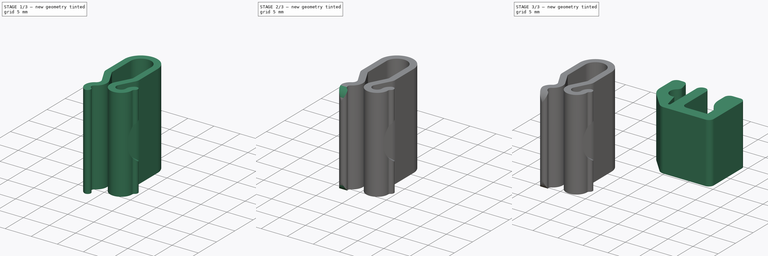
[diagram: build sequence overview — one tinted view per stage of 3, left to right]
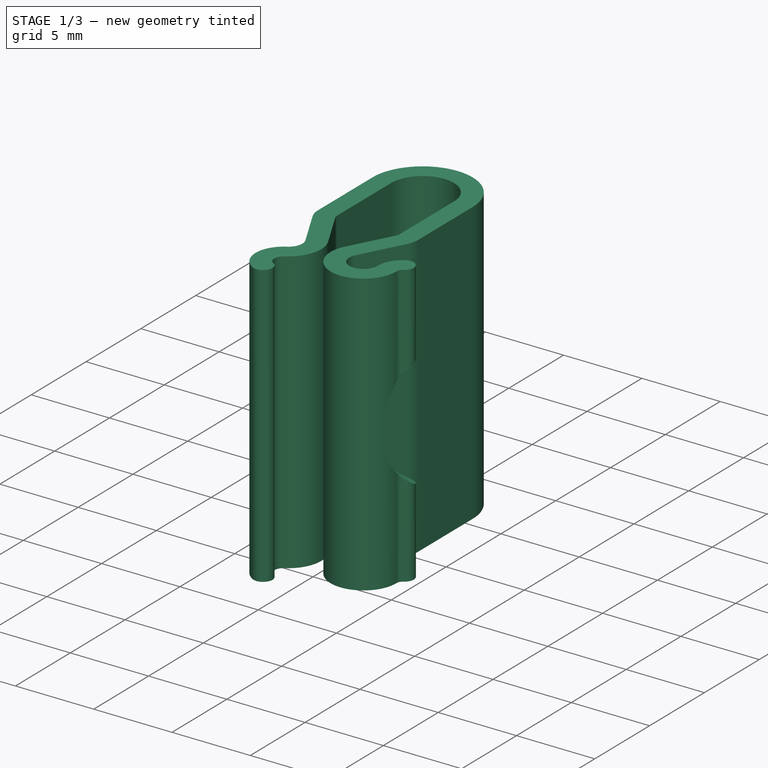
[diagram: stage 1 of 3 — iso view after this stage's code; geometry added in this stage tinted green]
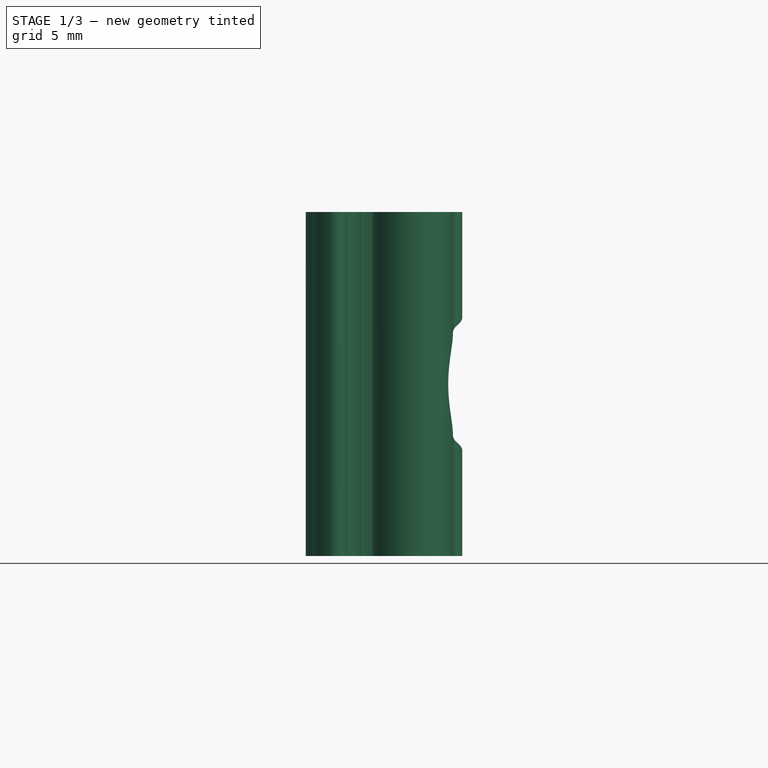
[diagram: stage 1 of 3 — front view after this stage's code; geometry added in this stage tinted green]
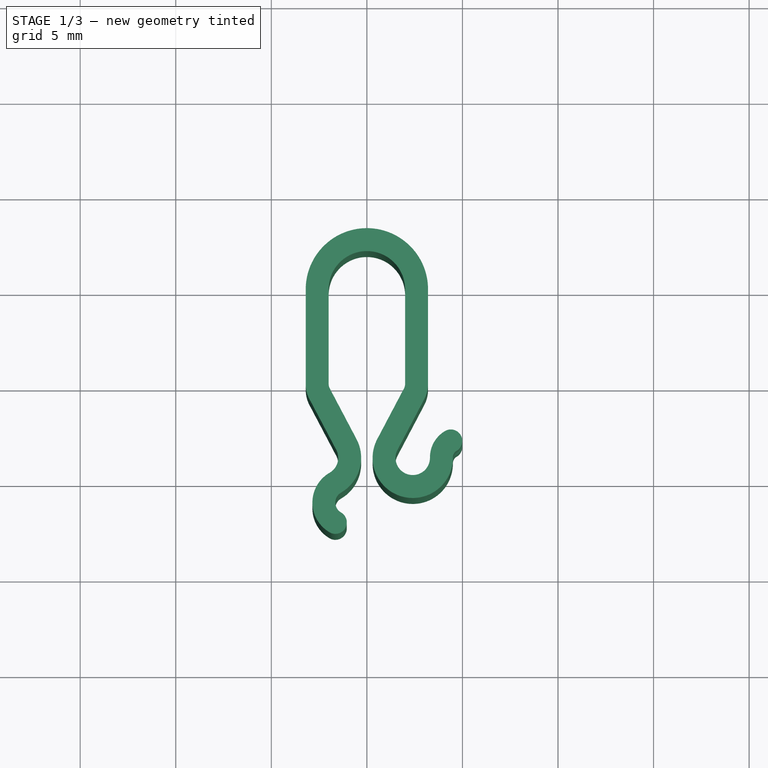
[diagram: stage 1 of 3 — top view after this stage's code; geometry added in this stage tinted green]
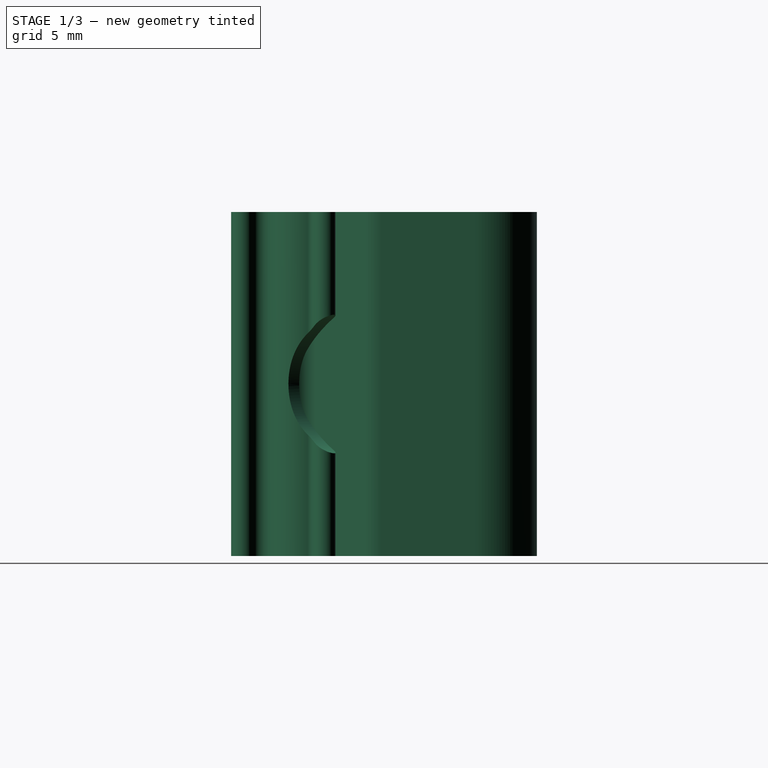
[diagram: stage 1 of 3 — right view after this stage's code; geometry added in this stage tinted green]
FCSTD DOCUMENT  (FreeCAD 1.0R39109 (Git))
Label: FilamentClip
License: All rights reserved
LicenseURL: http://en.wikipedia.org/wiki/All_rights_reserved
objects: Sketcher::SketchObject×4, PartDesign::Pad×2, PartDesign::Body×2, PartDesign::Pocket×2, PartDesign::Fillet×1
note: 25 computed .brp shape members not serialized (recipe doc carries the construction recipe); baked Part::Feature solids carry a one-line shape summary decoded from their .brp

FEATURE [PartDesign::Body] Body002  label="3mm"
  AllowCompound = false
  Group = -> [Sketch002,Pad002,Fillet001]
  Origin = -> Origin005
  Tip = -> Fillet001
FEATURE [Sketcher::SketchObject] Sketch009
  ArcFitTolerance = 1e-06
  AttachmentSupport = -> [XY_Plane009]
  FullyConstrained = true
  MakeInternals = false
  MapMode = 5
  sketch-geometry (37):
    g0: LineSegment StartX=-1.60396 StartY=-8.40013 StartZ=0 EndX=-3.00363 EndY=-5.74666 EndZ=0
    g1: LineSegment StartX=3.00363 StartY=-5.74666 StartZ=0 EndX=1.60396 EndY=-8.40013 EndZ=0
    g2: ArcOfCircle CenterX=2.4 CenterY=-8.82003 CenterZ=0 NormalX=0 NormalY=0 NormalZ=1 AngleXU=0 Radius=0.9 StartAngle=2.6562 EndAngle=6.29272
    g3: ArcOfCircle CenterX=4.89989 CenterY=-8.79618 CenterZ=0 NormalX=0 NormalY=0 NormalZ=1 AngleXU=0 Radius=1.6 StartAngle=2.10393 EndAngle=3.15113
    g4: ArcOfCircle CenterX=2.4 CenterY=-8.82003 CenterZ=0 NormalX=0 NormalY=0 NormalZ=1 AngleXU=0 Radius=2.1 StartAngle=2.6562 EndAngle=6.29272
    g5: LineSegment StartX=0.54257 StartY=-7.84026 StartZ=0 EndX=1.94225 EndY=-5.18679 EndZ=0
    g6: LineSegment StartX=-1.94225 StartY=-5.18679 StartZ=0 EndX=-0.54257 EndY=-7.84026 EndZ=0
    g7: LineSegment [constr] StartX=0.54257 StartY=-7.84026 StartZ=0 EndX=-0.54257 EndY=-7.84026 EndZ=0
    g8: ArcOfCircle CenterX=4.89989 CenterY=-8.79618 CenterZ=0 NormalX=0 NormalY=0 NormalZ=1 AngleXU=0 Radius=0.4 StartAngle=2.10393 EndAngle=3.15113
    g9: ArcOfCircle CenterX=-2.4 CenterY=-8.82003 CenterZ=0 NormalX=0 NormalY=0 NormalZ=1 AngleXU=0 Radius=2.1 StartAngle=5.23599 EndAngle=6.76858
    g10: ArcOfCircle CenterX=-2.4 CenterY=-8.82003 CenterZ=0 NormalX=0 NormalY=0 NormalZ=1 AngleXU=0 Radius=0.9 StartAngle=5.23599 EndAngle=6.76858
    g11: LineSegment [constr] StartX=2.3e-15 StartY=-7.84026 StartZ=0 EndX=-9e-16 EndY=3.2 EndZ=0
    g12: LineSegment [constr] StartX=-0.3 StartY=-7.84026 StartZ=0 EndX=-0.3 EndY=-8.82003 EndZ=0
    g13: LineSegment [constr] StartX=0.3 StartY=-7.84026 StartZ=0 EndX=0.3 EndY=-8.82003 EndZ=0
    g14: LineSegment [constr] StartX=3.00363 StartY=-5.74666 StartZ=0 EndX=1.94225 EndY=-5.18679 EndZ=0
    g15: LineSegment [constr] StartX=-3.00363 StartY=-5.74666 StartZ=0 EndX=-1.94225 EndY=-5.18679 EndZ=0
    g16: ArcOfCircle CenterX=-1.5 CenterY=-4.95351 CenterZ=0 NormalX=0 NormalY=0 NormalZ=1 AngleXU=0 Radius=0.5 StartAngle=3.14159 EndAngle=3.62699
    g17: LineSegment StartX=-2 StartY=-4.95351 StartZ=0 EndX=-2 EndY=4.23185e-07 EndZ=0
    g18: ArcOfCircle CenterX=-1.5 CenterY=-4.95351 CenterZ=0 NormalX=0 NormalY=0 NormalZ=1 AngleXU=0 Radius=1.7 StartAngle=3.14159 EndAngle=3.62699
    g19: LineSegment StartX=-3.2 StartY=-2.64623e-06 StartZ=0 EndX=-3.2 EndY=-4.95351 EndZ=0
    g20: ArcOfCircle CenterX=1.5 CenterY=-4.95351 CenterZ=0 NormalX=0 NormalY=0 NormalZ=1 AngleXU=0 Radius=0.5 StartAngle=5.79779 EndAngle=6.28319
    g21: ArcOfCircle CenterX=1.5 CenterY=-4.95351 CenterZ=0 NormalX=0 NormalY=0 NormalZ=1 AngleXU=0 Radius=1.7 StartAngle=5.79779 EndAngle=6.28319
    g22: LineSegment StartX=3.2 StartY=-4.95351 StartZ=0 EndX=3.2 EndY=0 EndZ=0
    g23: LineSegment StartX=2 StartY=-4.95351 StartZ=0 EndX=2 EndY=0 EndZ=0
    g24: ArcOfCircle CenterX=0 CenterY=0 CenterZ=0 NormalX=0 NormalY=0 NormalZ=1 AngleXU=0 Radius=2 StartAngle=0 EndAngle=3.14159
    g25: ArcOfCircle CenterX=0 CenterY=0 CenterZ=0 NormalX=0 NormalY=0 NormalZ=1 AngleXU=0 Radius=3.2 StartAngle=0 EndAngle=3.14159
    g26: LineSegment [constr] StartX=3.4847 StartY=-8.04969 StartZ=0 EndX=2.61772 EndY=-9.6933 EndZ=0
    g27: LineSegment [constr] StartX=3.4847 StartY=-8.04969 StartZ=0 EndX=2.15797 EndY=-7.34985 EndZ=0
    g28: ArcOfCircle CenterX=4.39165 CenterY=-7.93497 CenterZ=0 NormalX=0 NormalY=0 NormalZ=1 AngleXU=0 Radius=0.6 StartAngle=5.24553 EndAngle=8.38712
    g29: LineSegment [constr] StartX=3.29996 StartY=-8.81145 StartZ=0 EndX=4.4999 EndY=-8.8 EndZ=0
    g30: LineSegment [constr] StartX=4.69659 StartY=-8.4517 StartZ=0 EndX=4.08671 EndY=-7.41824 EndZ=0
    g31: LineSegment [constr] StartX=-1.35 StartY=-10.6387 StartZ=0 EndX=-2.4 EndY=-8.82003 EndZ=0
    g32: LineSegment [constr] StartX=-2.4 StartY=-8.82003 StartZ=0 EndX=-0.3 EndY=-8.82003 EndZ=0
    g33: ArcOfCircle CenterX=-1.05 CenterY=-11.1583 CenterZ=0 NormalX=0 NormalY=0 NormalZ=1 AngleXU=0 Radius=0.6 StartAngle=2.0944 EndAngle=4.18879
    g34: ArcOfCircle CenterX=-1.05 CenterY=-11.1583 CenterZ=0 NormalX=0 NormalY=0 NormalZ=1 AngleXU=0 Radius=1.8 StartAngle=2.0944 EndAngle=4.18879
    g35: LineSegment [constr] StartX=-1.95 StartY=-12.7171 StartZ=0 EndX=-1.35 EndY=-11.6779 EndZ=0
    g36: ArcOfCircle CenterX=-1.65 CenterY=-12.1975 CenterZ=0 NormalX=0 NormalY=0 NormalZ=1 AngleXU=0 Radius=0.6 StartAngle=4.18879 EndAngle=7.33038
  constraints (90):
    c: Coincident(g4,g2)
    c: Parallel(g5,g1)
    c: Parallel(g0,g6)
    c: Horizontal(g7)
    c: Equal(g6,g5)
    c: Coincident(g8,g3)
    c: Radius(g8) = 0.4
    c: Tangent(g2,g3) = 1.5708
    c: Coincident(g10,g9)
    c: Equal(g2,g10)
    c: Symmetric(g7,g7,g11)
    c: Vertical(g13)
    c: Tangent(g13,g4) = -1.5708
    c: Vertical(g12)
    c: Diameter(g2) = 1.8
    c: Distance(g1) = 3
    c: Symmetric(g5,g6,g11)
    c: Coincident(g14,g1)
    c: PointOnObject(g14,g5)
    c: Perpendicular(g5,g14)
    c: Distance(g14) = 1.2
    c: Coincident(g15,g0)
    c: PointOnObject(g15,g6)
    c: Perpendicular(g6,g15)
    c: Equal(g15,g14)
    c: Tangent(g6,g16) = -1.5708
    c: Vertical(g17)
    c: Tangent(g16,g17) = 1.5708
    c: Coincident(g18,g16)
    c: Tangent(g18,g0) = 1.5708
    c: Vertical(g19)
    c: Tangent(g18,g19) = -1.5708
    c: Tangent(g5,g20) = -1.5708
    c: Coincident(g21,g20)
    c: Tangent(g1,g21) = 1.5708
    c: Vertical(g22)
    c: Vertical(g23)
    c: Tangent(g23,g20) = -1.5708
    c: Tangent(g21,g22) = -1.5708
    c: Equal(g16,g20)
    c: Radius(g16) = 0.5
    c: Tangent(g23,g24) = -1.5708
    c: Coincident(g17,g24)
    c: Coincident(g25,g19)
    c: Tangent(g22,g25) = -1.5708
    c: PointOnObject(g24,g11)
    c: PointOnObject(g11,g25)
    c: Coincident(g24,g25)
    c: Tangent(g6,g9) = 1.5708
    c: Tangent(g0,g10) = -1.5708
    c: Tangent(g4,g5) = 1.5708
    c: Tangent(g1,g2) = -1.5708
    c: Tangent(g4,g8) = 1.5708
    c: PointOnObject(g26,g2)
    c: Parallel(g26,g1)
    c: Tangent(g26,g3) = -1.5708
    c: Coincident(g27,g26)
    c: PointOnObject(g27,g1)
    c: Perpendicular(g1,g27)
    c: Distance(g27) = 1.5
    c: Coincident(g7,g6)
    c: Coincident(g7,g4)
    c: PointOnObject(g12,g7)
    c: PointOnObject(g13,g7)
    c: DistanceX(g12,g13) = 0.6
    c: Coincident(g-1,g24)  '__ANCHOR__'
    c: DistanceY(g4,g11) = 12
    c: Tangent(g28,g3) = -1.5708
    c: Tangent(g28,g8) = 1.5708
    c: Coincident(g30,g8)
    c: Coincident(g30,g3)
    c: Angle(g30,g29) = 1.0472
    c: Coincident(g29,g4)
    c: Coincident(g29,g2)
    c: Radius(g24) = 2
    c: Tangent(g12,g9) = 1.5708
    c: Coincident(g31,g9)
    c: Coincident(g31,g9)
    c: Coincident(g32,g9)
    c: Coincident(g32,g12)
    c: Angle(g31,g32) = 1.0472
    c: Coincident(g34,g33)
    c: Tangent(g9,g33) = 1.5708
    c: Tangent(g10,g34) = 1.5708
    c: Coincident(g35,g34)
    c: Coincident(g35,g33)
    c: Tangent(g34,g36) = -1.5708
    c: Tangent(g33,g36) = 1.5708
    c: Angle(g31,g35) = 2.0944
    c: Radius(g33) = 0.6
FEATURE [PartDesign::Pad] Pad005
  Direction = (0,0,1)
  Length = 18
  Length2 = 10
  Profile = -> Sketch009
  ReferenceAxis = -> Sketch009 [N_Axis]
  Suppressed = false
  Type = 0
FEATURE [Sketcher::SketchObject] Sketch011
  ArcFitTolerance = 1e-06
  AttachmentOffset = pos=(0,0,0.1) rot=(0,0,1;0rad)
  AttachmentSupport = -> [Pad005]
  ExternalGeometry = -> [Sketch009]
  FullyConstrained = true
  MakeInternals = false
  MapMode = 5
  Placement = pos=(4.80971,-2.53707,0) rot=(0.760842,0.458868,0.458868;1.84078rad)
  expr: Constraints[1] = <<Pad005>>.Length
  sketch-geometry (6):
    g0: LineSegment [constr] StartX=-6.68149 StartY=8e-16 StartZ=0 EndX=-6.68149 EndY=18 EndZ=0
    g1: LineSegment [constr] StartX=-6.68149 StartY=9 StartZ=0 EndX=-2.68149 EndY=9 EndZ=0
    g2: ArcOfCircle CenterX=-2.68149 CenterY=9 CenterZ=0 NormalX=0 NormalY=0 NormalZ=1 AngleXU=0 Radius=4 StartAngle=1.5708 EndAngle=4.71239
    g3: LineSegment StartX=-2.68149 StartY=13 StartZ=0 EndX=7.31851 EndY=13 EndZ=0
    g4: LineSegment StartX=-2.68149 StartY=5 StartZ=0 EndX=7.31851 EndY=5 EndZ=0
    g5: LineSegment StartX=7.31851 StartY=5 StartZ=0 EndX=7.31851 EndY=13 EndZ=0
  constraints (16):
    c: Vertical(g0)
    c: DistanceY(g0,g0) = 18
    c: Symmetric(g0,g0,g1)
    c: Horizontal(g1)
    c: Coincident(g0,g-3)
    c: Coincident(g2,g1)
    c: Radius(g2) = 4
    c: PointOnObject(g1,g2)
    c: Horizontal(g3)
    c: Horizontal(g4)
    c: Coincident(g5,g4)
    c: Coincident(g5,g3)
    c: Vertical(g5)
    c: Tangent(g2,g4) = -1.5708
    c: Tangent(g2,g3) = 1.5708
    c: DistanceX(g3,g3) = 10
FEATURE [PartDesign::Pocket] Pocket005
  BaseFeature = -> Pad005
  Direction = (-0.88449,0.466558,2e-16)
  Length = 5
  Length2 = 5
  Profile = -> Sketch011
  ReferenceAxis = -> Sketch011 [N_Axis]
  Reversed = true
  Suppressed = false
  Type = 1
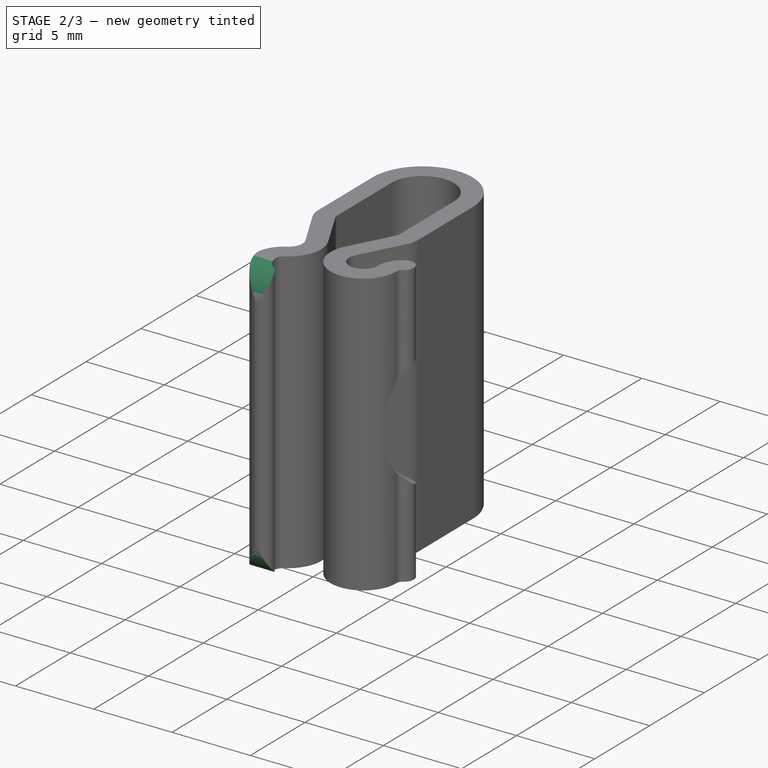
[diagram: stage 2 of 3 — iso view after this stage's code; geometry added in this stage tinted green]
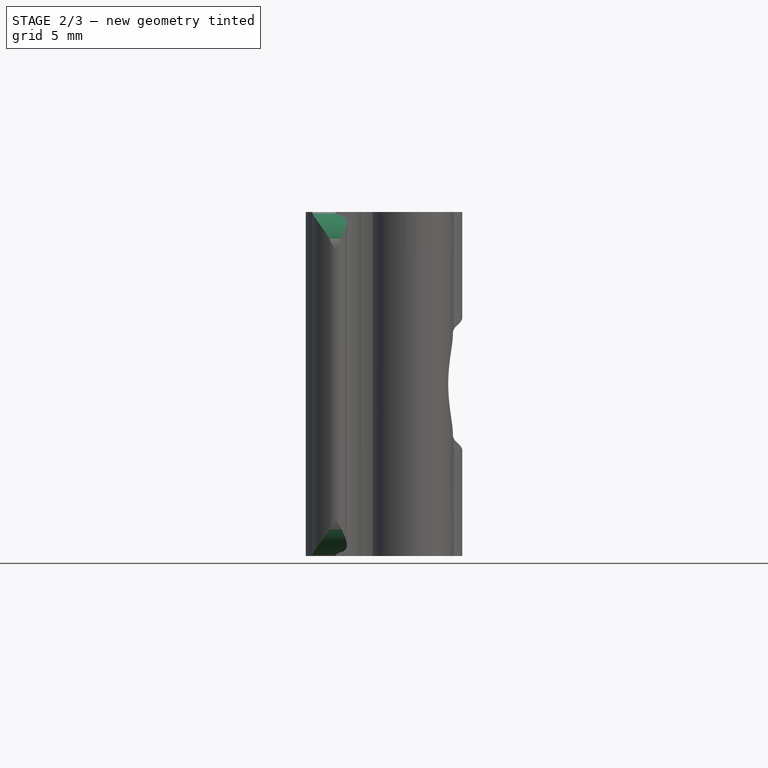
[diagram: stage 2 of 3 — front view after this stage's code; geometry added in this stage tinted green]
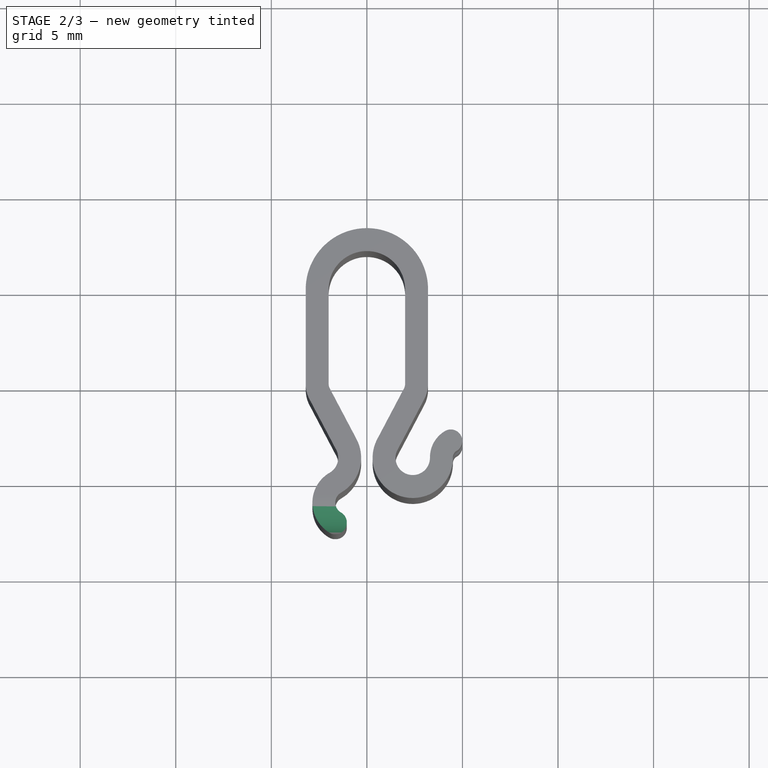
[diagram: stage 2 of 3 — top view after this stage's code; geometry added in this stage tinted green]
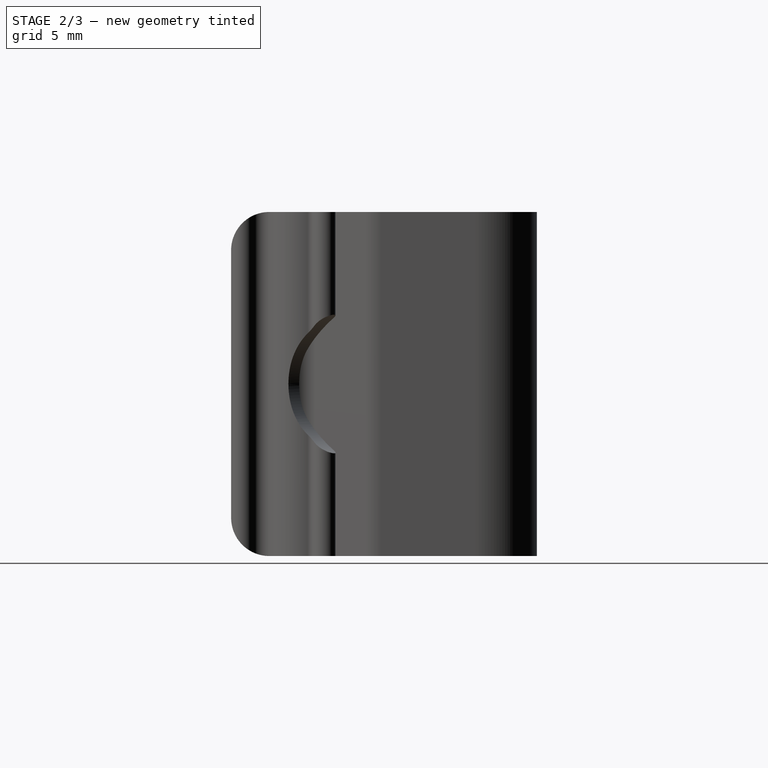
[diagram: stage 2 of 3 — right view after this stage's code; geometry added in this stage tinted green]
FEATURE [Sketcher::SketchObject] Sketch012
  ArcFitTolerance = 1e-06
  AttachmentSupport = -> [YZ_Plane009]
  ExternalGeometry = -> [Sketch009]
  FullyConstrained = true
  MakeInternals = false
  MapMode = 5
  Placement = pos=(0,0,0) rot=(0.57735,0.57735,0.57735;2.0944rad)
  expr: Constraints[3] = <<Pad005>>.Length
  sketch-geometry (12):
    g0: ArcOfCircle CenterX=-10.7975 CenterY=2 CenterZ=0 NormalX=0 NormalY=0 NormalZ=1 AngleXU=0 Radius=2 StartAngle=3.14159 EndAngle=4.71239
    g1: LineSegment [constr] StartX=-12.7975 StartY=0 StartZ=0 EndX=-12.7975 EndY=18 EndZ=0
    g2: LineSegment StartX=-12.7975 StartY=2 StartZ=0 EndX=-13.7975 EndY=2 EndZ=0
    g3: LineSegment StartX=-13.7975 StartY=2 StartZ=0 EndX=-13.7975 EndY=-1 EndZ=0
    g4: LineSegment StartX=-13.7975 StartY=-1 StartZ=0 EndX=-10.7975 EndY=-1 EndZ=0
    g5: LineSegment StartX=-10.7975 StartY=-1 StartZ=0 EndX=-10.7975 EndY=0 EndZ=0
    g6: LineSegment [constr] StartX=-12.7975 StartY=18 StartZ=0 EndX=0 EndY=18 EndZ=0
    g7: ArcOfCircle CenterX=-10.7975 CenterY=16 CenterZ=0 NormalX=0 NormalY=0 NormalZ=1 AngleXU=0 Radius=2 StartAngle=1.5708 EndAngle=3.14159
    g8: LineSegment StartX=-12.7975 StartY=16 StartZ=0 EndX=-13.7975 EndY=16 EndZ=0
    g9: LineSegment StartX=-13.7975 StartY=16 StartZ=0 EndX=-13.7975 EndY=19 EndZ=0
    g10: LineSegment StartX=-13.7975 StartY=19 StartZ=0 EndX=-10.7975 EndY=19 EndZ=0
    g11: LineSegment StartX=-10.7975 StartY=19 StartZ=0 EndX=-10.7975 EndY=18 EndZ=0
  constraints (34):
    c: Tangent(g0,g-3) = 1.5708
    c: Coincident(g1,g-3)
    c: Vertical(g1)
    c: DistanceY(g1,g1) = 18
    c: Tangent(g0,g1) = 1.5708
    c: Radius(g0) = 2
    c: Coincident(g0,g2)
    c: Coincident(g2,g3)
    c: Vertical(g3)
    c: Coincident(g3,g4)
    c: Horizontal(g4)
    c: Coincident(g4,g5)
    c: Coincident(g5,g0)
    c: Vertical(g5)
    c: Equal(g2,g5)
    c: DistanceX(g2,g2) = 1
    c: Horizontal(g2)
    c: Coincident(g6,g1)
    c: PointOnObject(g6,g-2)
    c: Horizontal(g6)
    c: Tangent(g7,g6) = 1.5708
    c: Tangent(g7,g1) = 1.5708
    c: Equal(g7,g0)
    c: Coincident(g7,g8)
    c: Horizontal(g8)
    c: Coincident(g8,g9)
    c: Vertical(g9)
    c: Coincident(g9,g10)
    c: Horizontal(g10)
    c: Coincident(g10,g11)
    c: Coincident(g11,g7)
    c: Vertical(g11)
    c: Equal(g5,g8)
    c: Equal(g8,g11)
FEATURE [PartDesign::Pocket] Pocket006
  BaseFeature = -> Pocket005
  Direction = (-1,0,0)
  Length = 5
  Length2 = 5
  Profile = -> Sketch012
  ReferenceAxis = -> Sketch012 [N_Axis]
  Suppressed = false
  Type = 1
FEATURE [PartDesign::Body] Body005  label="1.75mm_vase"
  AllowCompound = false
  Group = -> [Sketch009,Pad005,Sketch011,Pocket005,Sketch012,Pocket006]
  Origin = -> Origin009
  Tip = -> Pocket006
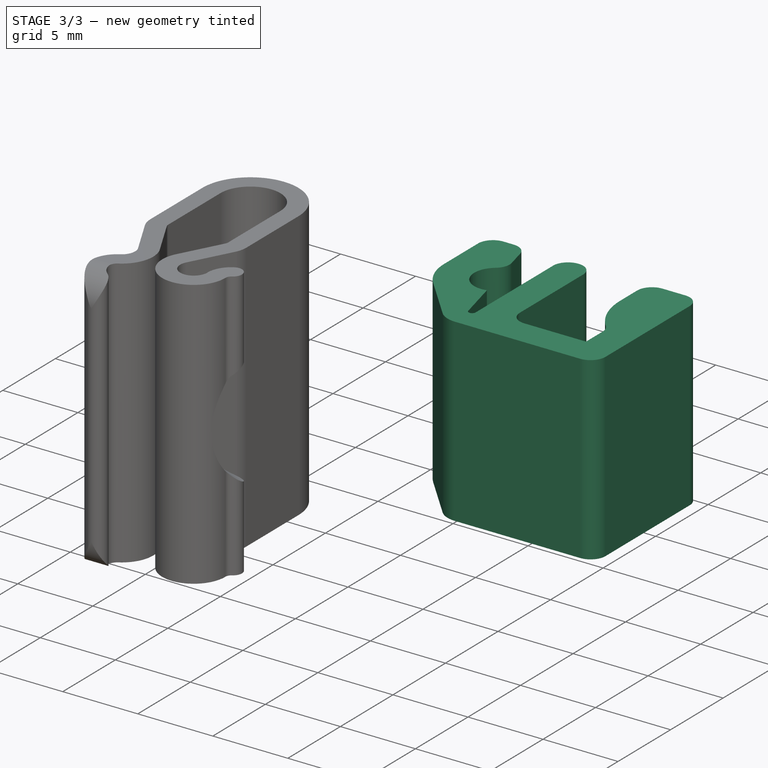
[diagram: stage 3 of 3 — iso view after this stage's code; geometry added in this stage tinted green]
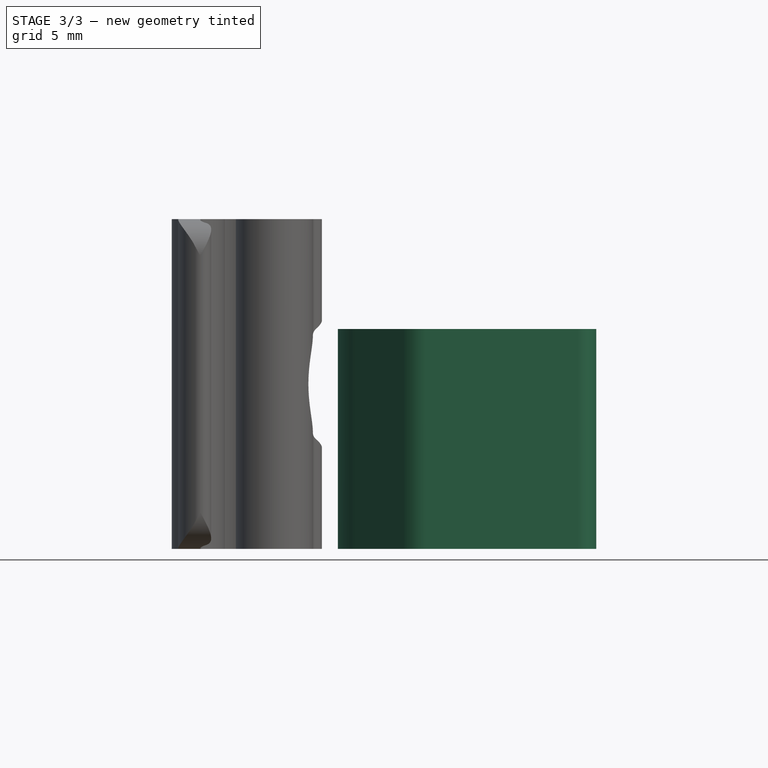
[diagram: stage 3 of 3 — front view after this stage's code; geometry added in this stage tinted green]
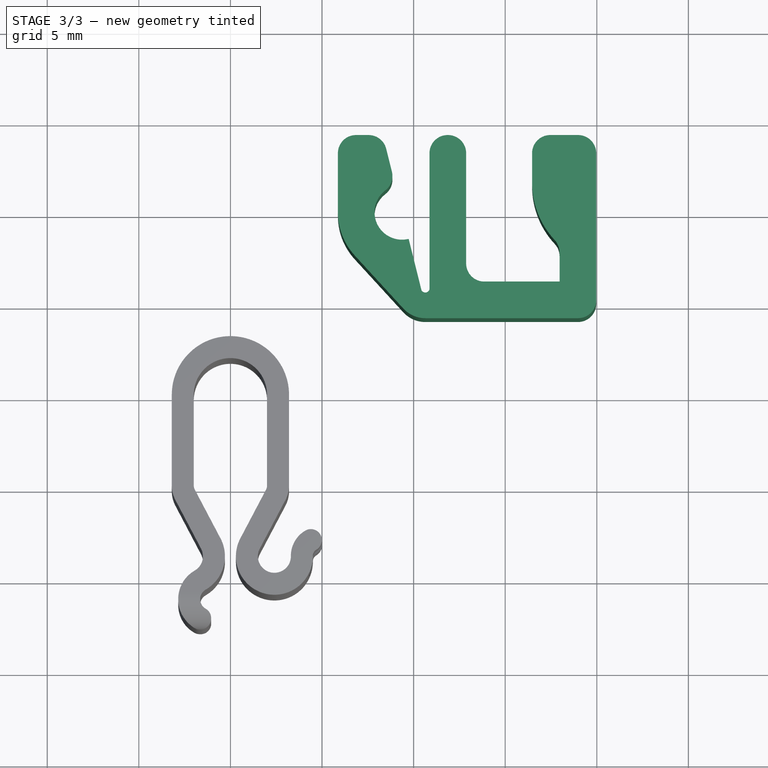
[diagram: stage 3 of 3 — top view after this stage's code; geometry added in this stage tinted green]
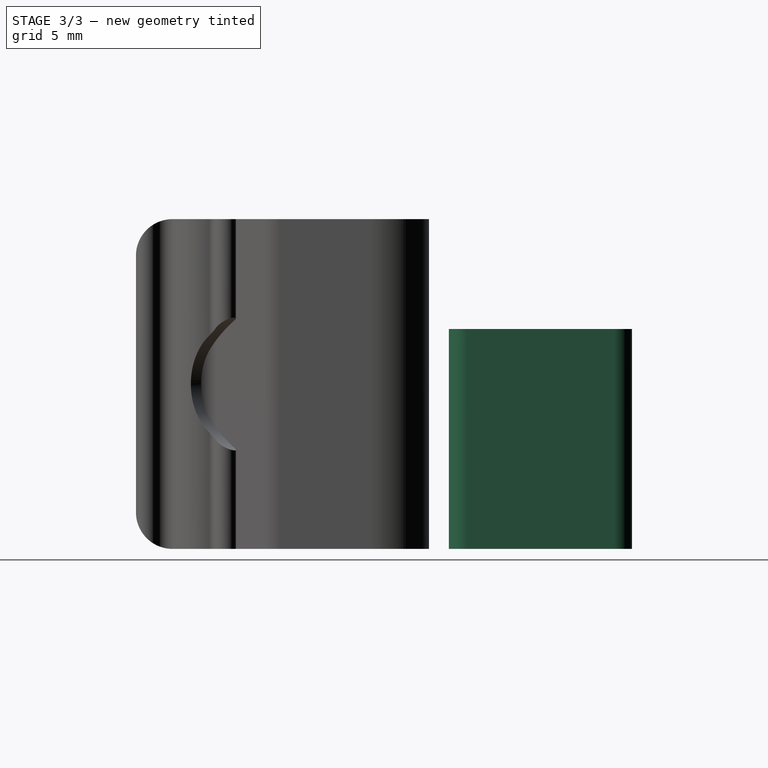
[diagram: stage 3 of 3 — right view after this stage's code; geometry added in this stage tinted green]
FEATURE [Sketcher::SketchObject] Sketch002
  ArcFitTolerance = 0
  AttachmentSupport = -> [XY_Plane005]
  FullyConstrained = true
  MakeInternals = false
  MapMode = 5
  sketch-geometry (26):
    g0: LineSegment StartX=16.467 StartY=11.6832 StartZ=0 EndX=16.467 EndY=14.2832 EndZ=0
    g1: LineSegment StartX=16.467 StartY=14.2832 StartZ=0 EndX=19.967 EndY=14.2832 EndZ=0
    g2: LineSegment StartX=19.967 StartY=14.2832 StartZ=0 EndX=19.967 EndY=4.28323 EndZ=0
    g3: LineSegment StartX=19.967 StartY=4.28323 StartZ=0 EndX=10.6389 EndY=4.28323 EndZ=0
    g4: LineSegment StartX=12.867 StartY=14.2832 StartZ=0 EndX=12.867 EndY=6.28323 EndZ=0
    g5: LineSegment StartX=17.967 StartY=6.28323 StartZ=0 EndX=17.967 EndY=8.28323 EndZ=0
    g6: LineSegment [constr] StartX=12.867 StartY=14.2832 StartZ=0 EndX=16.467 EndY=14.2832 EndZ=0
    g7: LineSegment StartX=5.86705 StartY=10.0697 StartZ=0 EndX=5.86705 EndY=14.2832 EndZ=0
    g8: LineSegment [constr] StartX=17.967 StartY=6.28323 StartZ=0 EndX=17.967 EndY=4.28323 EndZ=0
    g9: LineSegment StartX=8.31649 StartY=14.2832 StartZ=0 EndX=9.00416 EndY=11.5251 EndZ=0
    g10: ArcOfCircle CenterX=9.36705 CenterY=10.0697 CenterZ=0 NormalX=0 NormalY=0 NormalZ=1 AngleXU=0 Radius=1.5 StartAngle=1.81514 EndAngle=4.95674
    g11: LineSegment StartX=9.72993 StartY=8.61425 StartZ=0 EndX=10.4176 EndY=5.85616 EndZ=0
    g12: LineSegment StartX=12.867 StartY=14.2832 StartZ=0 EndX=10.867 EndY=14.2832 EndZ=0
    g13: LineSegment StartX=10.867 StartY=14.2832 StartZ=0 EndX=10.867 EndY=5.91134 EndZ=0
    g14: LineSegment StartX=12.867 StartY=6.28323 StartZ=0 EndX=17.967 EndY=6.28323 EndZ=0
    g15: LineSegment [constr] StartX=8.31649 StartY=14.2832 StartZ=0 EndX=10.867 EndY=14.2832 EndZ=0
    g16: ArcOfCircle CenterX=21.0704 CenterY=11.6832 CenterZ=0 NormalX=0 NormalY=0 NormalZ=1 AngleXU=0 Radius=4.60333 StartAngle=3.14159 EndAngle=3.97258
    g17: LineSegment [constr] StartX=7.86705 StartY=14.2832 StartZ=0 EndX=7.86705 EndY=10.0697 EndZ=0
    g18: LineSegment StartX=5.86705 StartY=14.2832 StartZ=0 EndX=7.86705 EndY=14.2832 EndZ=0
    g19: LineSegment StartX=7.86705 StartY=14.2832 StartZ=0 EndX=8.31649 EndY=14.2832 EndZ=0
    g20: LineSegment [constr] StartX=10.6389 StartY=5.68323 StartZ=0 EndX=10.6389 EndY=14.2832 EndZ=0
    g21: ArcOfCircle CenterX=10.6389 CenterY=5.91134 CenterZ=0 NormalX=0 NormalY=0 NormalZ=1 AngleXU=0 Radius=0.228112 StartAngle=3.38594 EndAngle=6.28319
    g22: LineSegment StartX=6.78674 StartY=7.70495 StartZ=0 EndX=9.43864 EndY=4.81132 EndZ=0
    g23: ArcOfCircle CenterX=9.36705 CenterY=10.0697 CenterZ=0 NormalX=0 NormalY=0 NormalZ=1 AngleXU=0 Radius=3.5 StartAngle=3.14159 EndAngle=3.88343
    g24: ArcOfCircle CenterX=10.6389 CenterY=5.91134 CenterZ=0 NormalX=0 NormalY=0 NormalZ=1 AngleXU=0 Radius=1.62811 StartAngle=3.88343 EndAngle=4.71239
    g25: LineSegment [constr] StartX=17.967 StartY=6.28323 StartZ=0 EndX=19.967 EndY=6.28323 EndZ=0
  constraints (70):
    c: Vertical(g0)
    c: Coincident(g0,g1)
    c: Horizontal(g1)
    c: Coincident(g1,g2)
    c: Vertical(g2)
    c: Coincident(g2,g3)
    c: Horizontal(g3)
    c: Vertical(g4)
    c: Coincident(g14,g5)
    c: Vertical(g5)
    c: Coincident(g6,g0)
    c: Horizontal(g6)
    c: DistanceY(g2,g2) = 10
    c: Vertical(g7)
    c: Coincident(g8,g14)
    c: PointOnObject(g8,g3)
    c: Vertical(g8)
    c: Tangent(g9,g11)
    c: Radius(g10) = 1.5
    c: Coincident(g11,g10)
    c: DistanceX(g2) = 19.967
    c: DistanceY(g2) = 4.28323
    c: Coincident(g6,g4)
    c: Coincident(g12,g4)
    c: Horizontal(g12)
    c: Coincident(g13,g12)
    c: Vertical(g13)
    c: Coincident(g14,g4)
    c: Coincident(g15,g12)
    c: Horizontal(g15)
    c: Tangent(g10,g13)
    c: DistanceX(g12,g12) = 2
    c: Vertical(g17)
    c: Coincident(g18,g7)
    c: Coincident(g18,g17)
    c: Horizontal(g18)
    c: Coincident(g19,g18)
    c: Coincident(g19,g9)
    c: Horizontal(g19)
    c: Equal(g18,g8)
    c: Coincident(g15,g9)
    c: Angle(g13,g11) = 0.244346
    c: Vertical(g20)
    c: PointOnObject(g20,g15)
    c: Symmetric(g11,g9,g10)
    c: Coincident(g10,g9)
    c: Tangent(g13,g21) = 1.5708
    c: Tangent(g11,g21) = -1.5708
    c: Horizontal(g14)
    c: PointOnObject(g21,g20)
    c: Tangent(g7,g23) = 1.5708
    c: Tangent(g22,g23) = -1.5708
    c: Tangent(g3,g24) = 1.5708
    c: Tangent(g22,g24) = -1.5708
    c: Coincident(g24,g21)
    c: Coincident(g23,g10)
    c: Tangent(g17,g10) = -1.5708
    c: Tangent(g0,g16) = 1.5708
    c: DistanceY(g3,g20) = 1.4
    c: PointOnObject(g20,g21)
    c: DistanceY(g5,g5) = 2
    c: Equal(g8,g12)
    c: DistanceX(g6,g6) = 3.6
    c: Coincident(g16,g5)
    c: DistanceX(g0,g5) = 1.5
    c: Coincident(g25,g5)
    c: PointOnObject(g25,g2)
    c: Horizontal(g25)
    c: Equal(g25,g12)
    c: DistanceY(g5,g0) = 5.4
FEATURE [PartDesign::Pad] Pad002
  AllowMultiFace = false
  Direction = (0,0,1)
  Length = 12
  Length2 = 100
  Profile = -> Sketch002
  Refine = true
  Suppressed = false
  Type = 0
FEATURE [PartDesign::Fillet] Fillet001
  Base = -> Pad002 [Edge2,Edge20,Edge1,Edge41,Edge38,Edge17,Edge35,Edge14,Edge8,Edge42]
  BaseFeature = -> Pad002
  Radius = 0.99
  SupportTransform = false
  Suppressed = false
  UseAllEdges = false
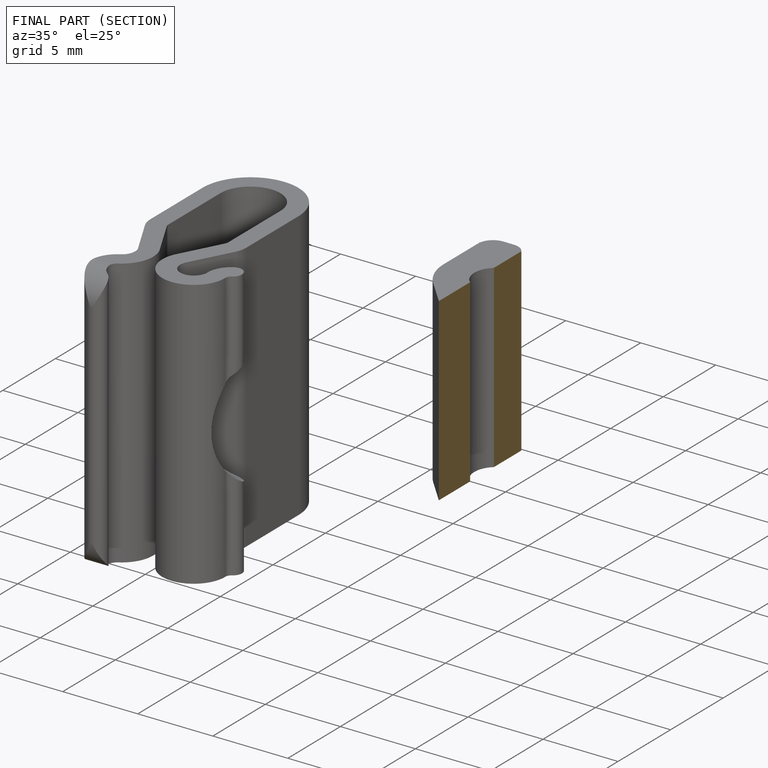
[diagram: finished part — half-section view (interior)]
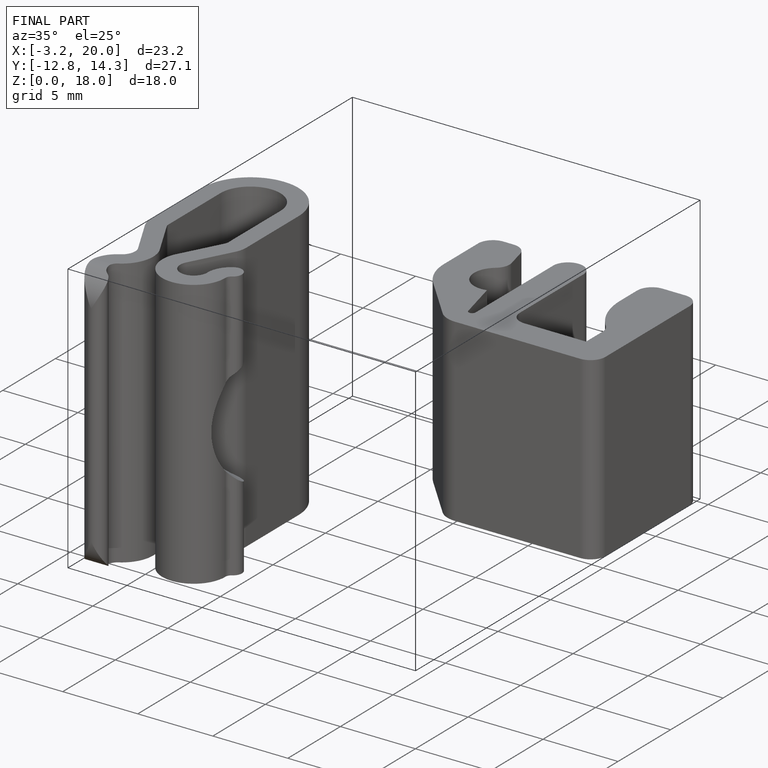
[diagram: finished part — iso view with bounding-box wireframe]
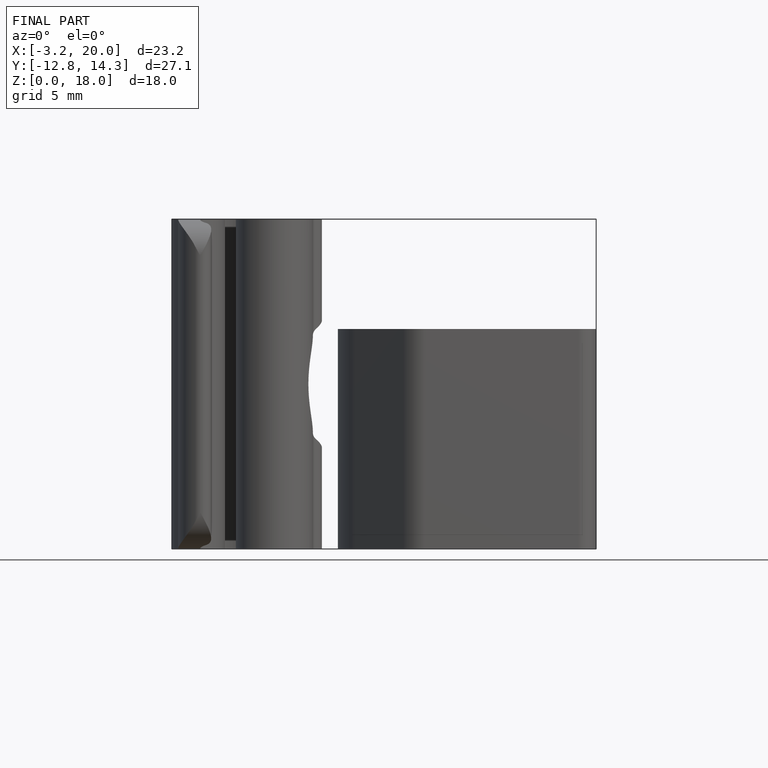
[diagram: finished part — front view with bounding-box wireframe]
